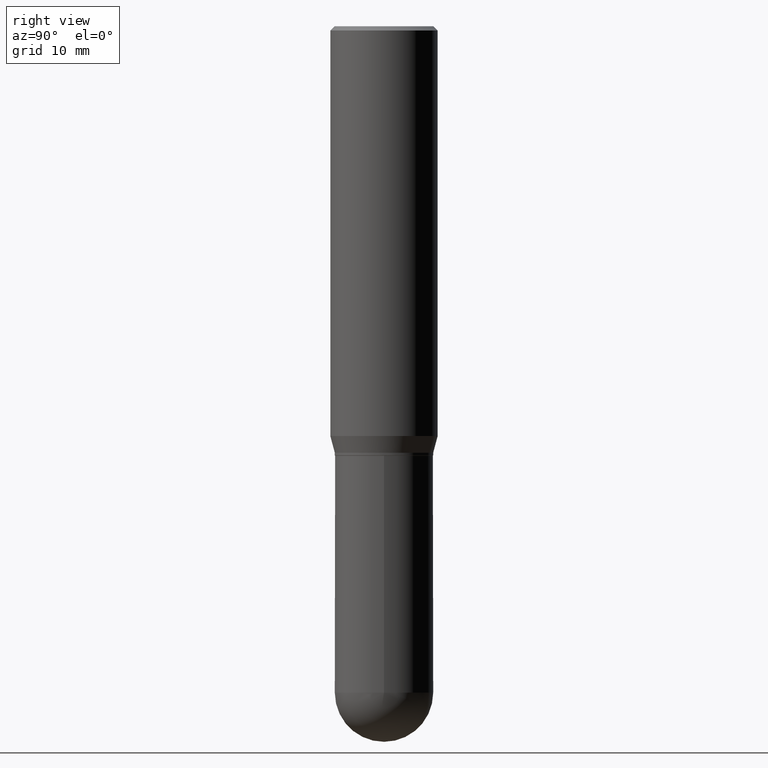
[diagram: clean part render]
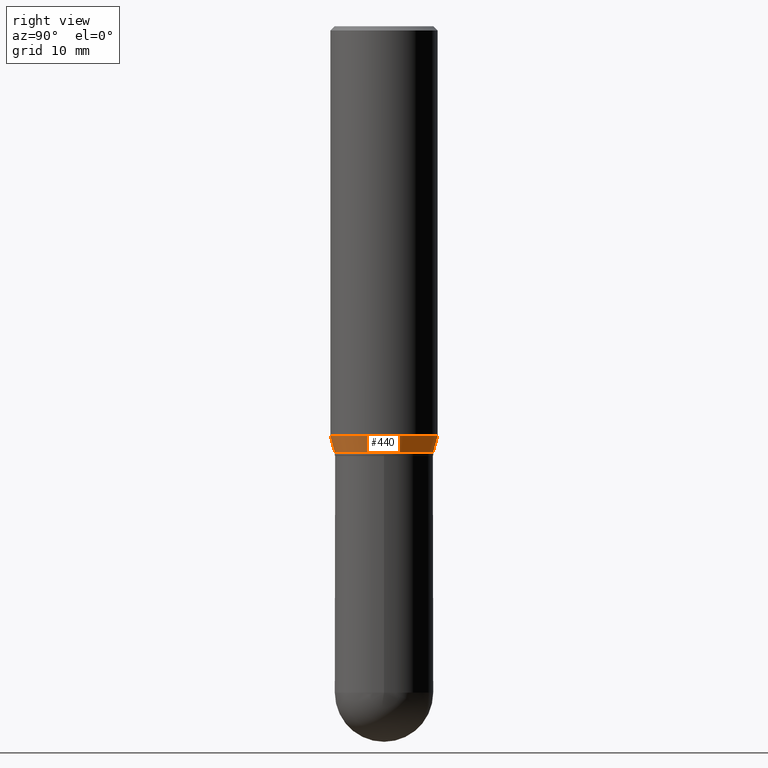
[diagram: same view with one face highlighted and labeled with its STEP entity id]
A machine part, right view. The second image highlights one B-rep face of the part: STEP entity #440.
In plain terms, the highlighted conical surface has half-angle 15 deg.
Its self-contained STEP definition (entity closure, byte-faithful):
#4 = VECTOR ( 'NONE', #227, 39.37007874015748854 ) ;
#7 = CARTESIAN_POINT ( 'NONE',  ( 3.643209233054260103E-29, -5.203079486218066937E-15, -1.490000000000000213 ) ) ;
#30 = ORIENTED_EDGE ( 'NONE', *, *, #433, .T. ) ;
#36 = VERTEX_POINT ( 'NONE', #477 ) ;
#63 = CARTESIAN_POINT ( 'NONE',  ( 3.500855129308181168E-29, -4.999775292141012103E-15, -1.431780007401925348 ) ) ;
#71 = DIRECTION ( 'NONE',  ( -2.445106867821650572E-29, 3.491999655179909992E-15, 1.000000000000000000 ) ) ;
#82 = EDGE_CURVE ( 'NONE', #448, #310, #295, .T. ) ;
#133 = DIRECTION ( 'NONE',  ( -2.445106867821650572E-29, 3.491999655179909992E-15, 1.000000000000000000 ) ) ;
#138 = CARTESIAN_POINT ( 'NONE',  ( -1.200371284294231968E-15, -0.1719000000000050765, -1.489999999999999769 ) ) ;
#141 = VERTEX_POINT ( 'NONE', #138 ) ;
#147 = AXIS2_PLACEMENT_3D ( 'NONE', #63, #133, #328 ) ;
#160 = AXIS2_PLACEMENT_3D ( 'NONE', #7, #71, #348 ) ;
#179 = EDGE_LOOP ( 'NONE', ( #407, #30, #388, #231 ) ) ;
#227 = DIRECTION ( 'NONE',  ( 1.839019923739597949E-15, 0.2588190451025246253, 0.9659258262890670910 ) ) ;
#229 = LINE ( 'NONE', #351, #4 ) ;
#231 = ORIENTED_EDGE ( 'NONE', *, *, #456, .F. ) ;
#257 = AXIS2_PLACEMENT_3D ( 'NONE', #458, #341, #302 ) ;
#295 = CIRCLE ( 'NONE', #147, 0.1875000000000000278 ) ;
#302 = DIRECTION ( 'NONE',  ( -6.982962677686265922E-15, -1.000000000000000000, 3.178415350394723646E-15 ) ) ;
#306 = CIRCLE ( 'NONE', #160, 0.1718999999999998862 ) ;
#310 = VERTEX_POINT ( 'NONE', #333 ) ;
#322 = VECTOR ( 'NONE', #355, 39.37007874015748143 ) ;
#328 = DIRECTION ( 'NONE',  ( -6.982962677686265922E-15, -1.000000000000000000, 2.913971193241880372E-15 ) ) ;
#333 = CARTESIAN_POINT ( 'NONE',  ( 1.332267629550222558E-15, 0.1874999999999950318, -1.431780007401926014 ) ) ;
#341 = DIRECTION ( 'NONE',  ( -2.445106867821650572E-29, 3.491999655179909992E-15, 1.000000000000000000 ) ) ;
#348 = DIRECTION ( 'NONE',  ( -6.982962677686265922E-15, -1.000000000000000000, 3.178415350394723646E-15 ) ) ;
#351 = CARTESIAN_POINT ( 'NONE',  ( 1.221422962771647501E-15, 0.1718999999999946959, -1.490000000000000879 ) ) ;
#355 = DIRECTION ( 'NONE',  ( -1.807323732225328167E-15, -0.2588190451025179084, 0.9659258262890690894 ) ) ;
#365 = CARTESIAN_POINT ( 'NONE',  ( -1.309305502066140101E-15, -0.1875000000000049960, -1.431780007401924903 ) ) ;
#368 = EDGE_CURVE ( 'NONE', #141, #36, #306, .T. ) ;
#388 = ORIENTED_EDGE ( 'NONE', *, *, #82, .F. ) ;
#407 = ORIENTED_EDGE ( 'NONE', *, *, #368, .T. ) ;
#433 = EDGE_CURVE ( 'NONE', #36, #310, #229, .T. ) ;
#440 = ADVANCED_FACE ( 'NONE', ( #464 ), #478, .T. ) ;
#448 = VERTEX_POINT ( 'NONE', #365 ) ;
#456 = EDGE_CURVE ( 'NONE', #141, #448, #468, .T. ) ;
#458 = CARTESIAN_POINT ( 'NONE',  ( 3.643209233054260103E-29, -5.203079486218066937E-15, -1.490000000000000213 ) ) ;
#464 = FACE_OUTER_BOUND ( 'NONE', #179, .T. ) ;
#468 = LINE ( 'NONE', #473, #322 ) ;
#473 = CARTESIAN_POINT ( 'NONE',  ( -1.200371284294231968E-15, -0.1719000000000050765, -1.489999999999999769 ) ) ;
#477 = CARTESIAN_POINT ( 'NONE',  ( 1.276845296160934931E-15, 0.1718999999999946959, -1.490000000000000879 ) ) ;
#478 = CONICAL_SURFACE ( 'NONE', #257, 0.1718999999999998862, 0.2617993877991499629 ) ;